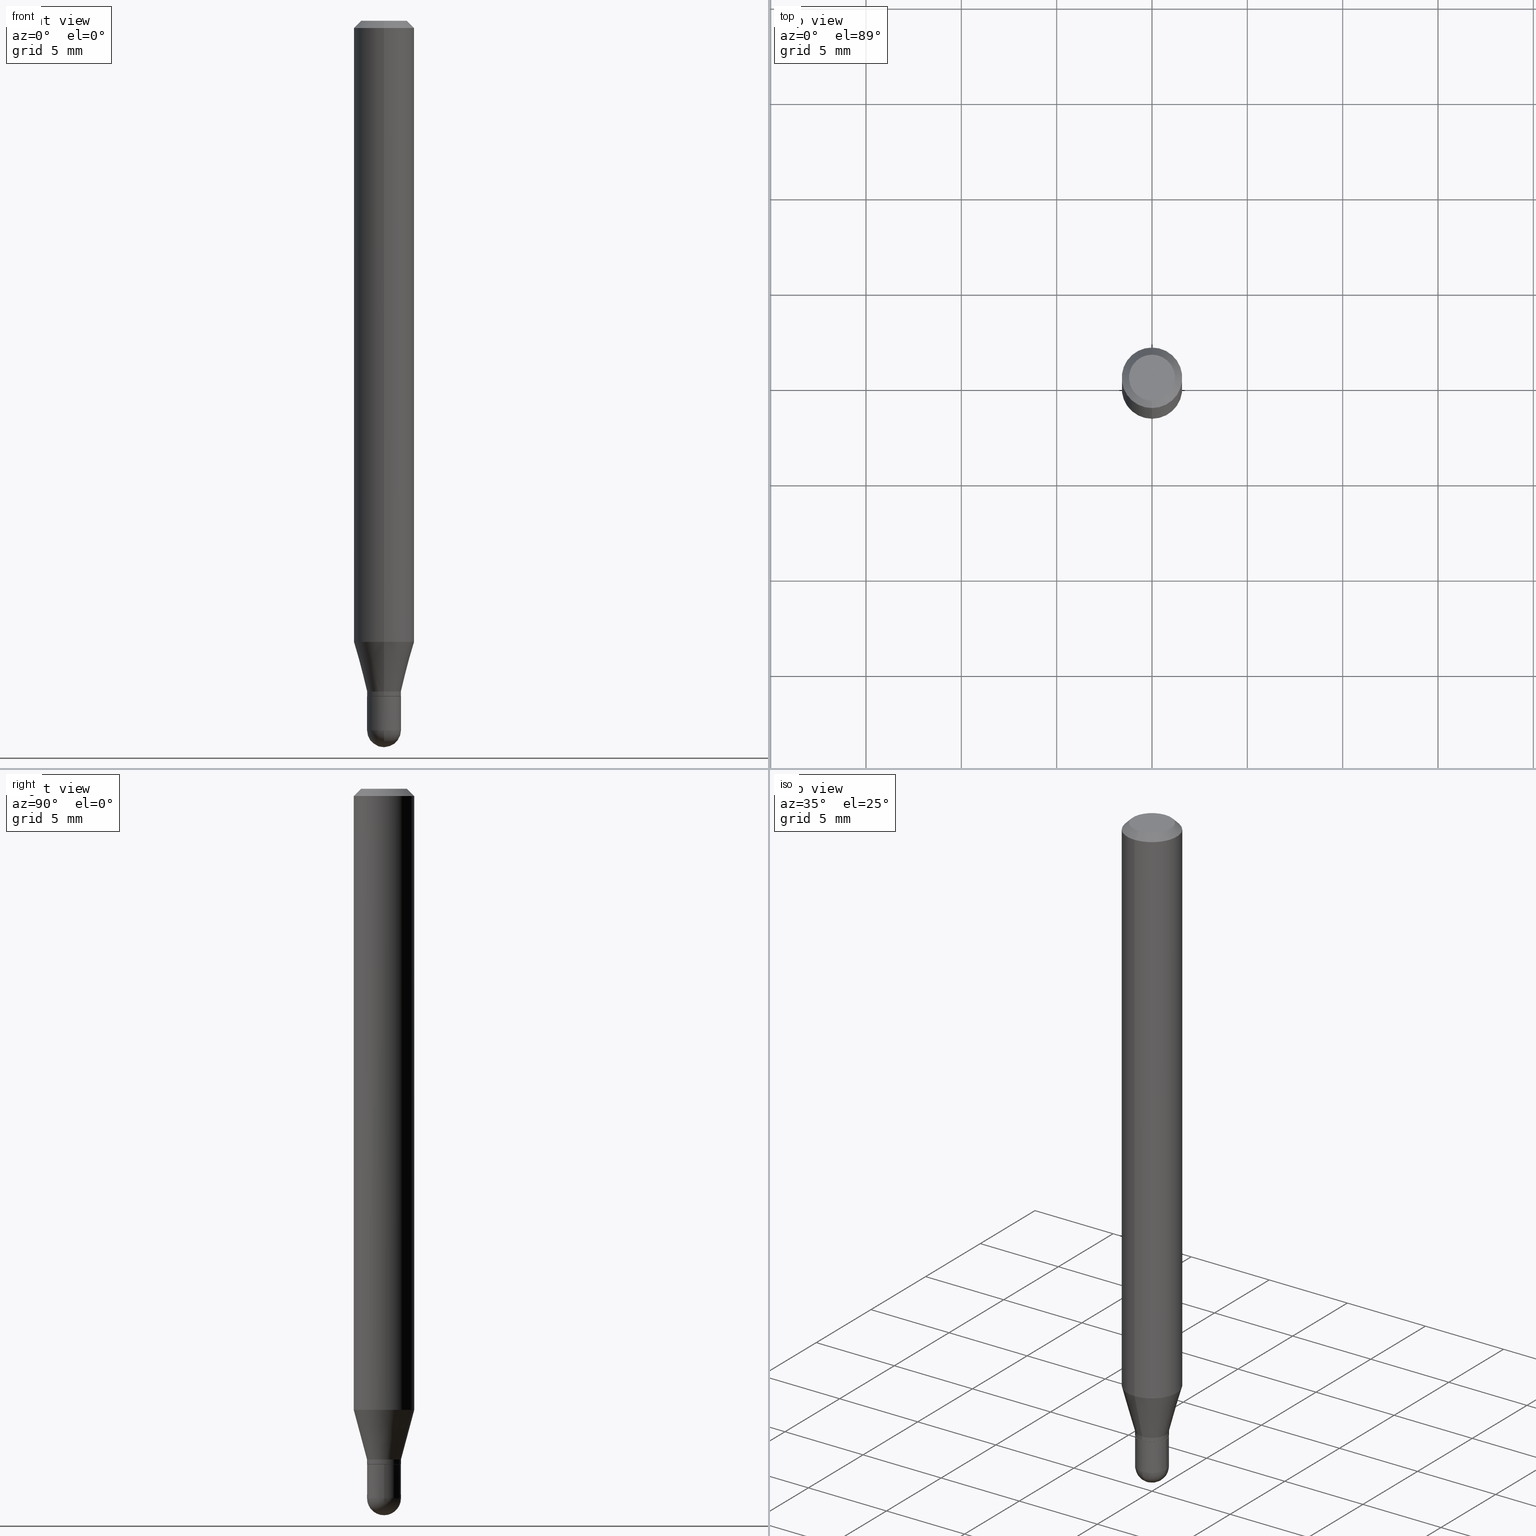
[diagram: canonical four-view strip — front | top / right | iso, engineering-drawing reading convention]
A machine part, canonical four-view strip (front | top / right | iso — engineering-drawing reading convention). The complete STEP part file that produces these views, byte-faithful:
ISO-10303-21;
HEADER;
FILE_DESCRIPTION (( 'STEP AP203' ),
    '1' );
FILE_NAME ('00798.STEP',
    '2024-03-07T18:24:52',
    ( '' ),
    ( '' ),
    'SwSTEP 2.0',
    'SolidWorks 2023',
    '' );
FILE_SCHEMA (( 'CONFIG_CONTROL_DESIGN' ));
ENDSEC;

DATA;
#1 = CARTESIAN_POINT ( 'NONE',  ( -0.03500000000000000333, 2.486899575160350887E-16, -1.721627281589217108E-30 ) ) ;
#2 = PERSON ( 'UNSPECIFIED', 'UNSPECIFIED', 'UNSPECIFIED', ('UNSPECIFIED'), ('UNSPECIFIED'), ('UNSPECIFIED') ) ;
#3 = CARTESIAN_POINT ( 'NONE',  ( 0.000000000000000000, 0.000000000000000000, 0.000000000000000000 ) ) ;
#4 = EDGE_CURVE ( 'NONE', #70, #335, #216, .T. ) ;
#5 = ORIENTED_EDGE ( 'NONE', *, *, #106, .F. ) ;
#6 = MECHANICAL_CONTEXT ( 'NONE', #450, 'mechanical' ) ;
#7 = LINE ( 'NONE', #398, #169 ) ;
#8 = CLOSED_SHELL ( 'NONE', ( #183, #82, #379, #500, #395 ) ) ;
#9 = VECTOR ( 'NONE', #223, 39.37007874015748143 ) ;
#10 = DIRECTION ( 'NONE',  ( -6.982962677686265133E-15, -1.000000000000000000, 0.000000000000000000 ) ) ;
#11 = EDGE_CURVE ( 'NONE', #335, #428, #389, .T. ) ;
#12 = AXIS2_PLACEMENT_3D ( 'NONE', #69, #235, #386 ) ;
#13 = DIRECTION ( 'NONE',  ( 1.000000000000000000, 0.000000000000000000, 0.000000000000000000 ) ) ;
#14 = CARTESIAN_POINT ( 'NONE',  ( -4.364351673553604601E-16, -0.06250000000000451028, -1.282368602791855716 ) ) ;
#15 = DATE_TIME_ROLE ( 'creation_date' ) ;
#16 = CARTESIAN_POINT ( 'NONE',  ( 3.668135140074486456E-31, -5.237319487237992439E-17, -0.01500000000000000812 ) ) ;
#17 = CARTESIAN_POINT ( 'NONE',  ( 0.000000000000000000, 0.000000000000000000, 0.000000000000000000 ) ) ;
#18 = AXIS2_PLACEMENT_3D ( 'NONE', #315, #313, #122 ) ;
#19 = CONICAL_SURFACE ( 'NONE', #301, 0.03450000000000000289, 0.7853981633974739252 ) ;
#20 = LOCAL_TIME ( 13, 24, 52.00000000000000000, #442 ) ;
#21 = COORDINATED_UNIVERSAL_TIME_OFFSET ( 5, 0, .BEHIND. ) ;
#22 = EDGE_CURVE ( 'NONE', #304, #262, #168, .T. ) ;
#23 = LINE ( 'NONE', #490, #257 ) ;
#24 = PERSON_AND_ORGANIZATION_ROLE ( 'design_supplier' ) ;
#25 = DIRECTION ( 'NONE',  ( -2.445423426716322459E-29, 3.491546324825326452E-15, 1.000000000000000000 ) ) ;
#26 = COORDINATED_UNIVERSAL_TIME_OFFSET ( 5, 0, .BEHIND. ) ;
#27 = DIRECTION ( 'NONE',  ( -2.445423426716322459E-29, 3.491546324825326452E-15, 1.000000000000000000 ) ) ;
#28 = ORIENTED_EDGE ( 'NONE', *, *, #106, .T. ) ;
#29 = ADVANCED_FACE ( 'NONE', ( #238 ), #247, .T. ) ;
#30 = PERSON_AND_ORGANIZATION_ROLE ( 'classification_officer' ) ;
#31 = PRODUCT ( '00798', '00798', '', ( #6 ) ) ;
#32 = DIRECTION ( 'NONE',  ( -6.982962677686265922E-15, -1.000000000000000000, 3.491546324825326452E-15 ) ) ;
#33 = ORIENTED_EDGE ( 'NONE', *, *, #116, .F. ) ;
#34 = ORIENTED_EDGE ( 'NONE', *, *, #460, .T. ) ;
#35 = ORIENTED_EDGE ( 'NONE', *, *, #52, .F. ) ;
#36 = AXIS2_PLACEMENT_3D ( 'NONE', #51, #204, #354 ) ;
#37 = AXIS2_PLACEMENT_3D ( 'NONE', #57, #213, #363 ) ;
#38 = AXIS2_PLACEMENT_3D ( 'NONE', #477, #245, #483 ) ;
#39 = EDGE_CURVE ( 'NONE', #191, #141, #284, .T. ) ;
#40 = UNCERTAINTY_MEASURE_WITH_UNIT (LENGTH_MEASURE( 1.000000000000000082E-05 ), #251, 'distance_accuracy_value', 'NONE');
#41 = ORIENTED_EDGE ( 'NONE', *, *, #239, .T. ) ;
#42 = CYLINDRICAL_SURFACE ( 'NONE', #54, 0.06250000000000000000 ) ;
#43 = EDGE_LOOP ( 'NONE', ( #378, #498, #105, #482 ) ) ;
#44 = LINE ( 'NONE', #311, #9 ) ;
#45 = DIRECTION ( 'NONE',  ( -2.445423426716322459E-29, 3.491546324825326452E-15, 1.000000000000000000 ) ) ;
#46 = EDGE_CURVE ( 'NONE', #452, #456, #390, .T. ) ;
#47 = DIRECTION ( 'NONE',  ( 1.000000000000000000, -6.982962677686276966E-15, 0.000000000000000000 ) ) ;
#48 = CIRCLE ( 'NONE', #278, 0.06250000000000000000 ) ;
#49 = CARTESIAN_POINT ( 'NONE',  ( 0.03500000000000000333, -2.444036937190193250E-16, 1.706661871528577808E-30 ) ) ;
#50 = DIMENSIONAL_EXPONENTS ( 1.000000000000000000, 0.000000000000000000, 0.000000000000000000, 0.000000000000000000, 0.000000000000000000, 0.000000000000000000, 0.000000000000000000 ) ;
#51 = CARTESIAN_POINT ( 'NONE',  ( 3.579618719049097467E-29, -5.119306425202223514E-15, -1.465000000000000080 ) ) ;
#52 = EDGE_CURVE ( 'NONE', #141, #492, #437, .T. ) ;
#53 = CARTESIAN_POINT ( 'NONE',  ( 3.411428984628265351E-29, -4.870616467686188228E-15, -1.395000000000000018 ) ) ;
#54 = AXIS2_PLACEMENT_3D ( 'NONE', #334, #27, #418 ) ;
#55 = DIRECTION ( 'NONE',  ( -2.445468806185136597E-29, 3.491481338843145583E-15, 1.000000000000000000 ) ) ;
#56 = CALENDAR_DATE ( 2024, 7, 3 ) ;
#57 = CARTESIAN_POINT ( 'NONE',  ( 3.386911446002107109E-29, -4.835791659883077532E-15, -1.385000000000000009 ) ) ;
#58 =( LENGTH_UNIT ( ) NAMED_UNIT ( * ) SI_UNIT ( $, .METRE. ) );
#59 = CYLINDRICAL_SURFACE ( 'NONE', #375, 0.03500000000000000333 ) ;
#60 = EDGE_CURVE ( 'NONE', #456, #309, #277, .T. ) ;
#61 = DIRECTION ( 'NONE',  ( -1.807323732225328167E-15, -0.2588190451025179084, 0.9659258262890690894 ) ) ;
#62 = AXIS2_PLACEMENT_3D ( 'NONE', #64, #436, #180 ) ;
#63 = ORGANIZATION ( 'UNSPECIFIED', 'UNSPECIFIED', '' ) ;
#64 = CARTESIAN_POINT ( 'NONE',  ( 0.000000000000000000, 0.000000000000000000, 0.000000000000000000 ) ) ;
#65 = EDGE_CURVE ( 'NONE', #191, #503, #127, .T. ) ;
#66 = DIRECTION ( 'NONE',  ( -2.445423426716322459E-29, 3.491546324825326452E-15, 1.000000000000000000 ) ) ;
#67 = ORIENTED_EDGE ( 'NONE', *, *, #136, .F. ) ;
#68 = PERSON_AND_ORGANIZATION ( #2, #63 ) ;
#69 = CARTESIAN_POINT ( 'NONE',  ( 3.582611801061224486E-29, -5.115020161405207405E-15, -1.464999999999999858 ) ) ;
#70 = VERTEX_POINT ( 'NONE', #206 ) ;
#71 = CIRCLE ( 'NONE', #447, 0.04749999999999999362 ) ;
#72 = APPROVAL_DATE_TIME ( #406, #193 ) ;
#73 =( GEOMETRIC_REPRESENTATION_CONTEXT ( 3 ) GLOBAL_UNCERTAINTY_ASSIGNED_CONTEXT ( ( #40 ) ) GLOBAL_UNIT_ASSIGNED_CONTEXT ( ( #251, #435, #355 ) ) REPRESENTATION_CONTEXT ( 'NONE', 'WORKASPACE' ) );
#74 = EDGE_LOOP ( 'NONE', ( #434, #393, #194, #179 ) ) ;
#75 = ORIENTED_EDGE ( 'NONE', *, *, #274, .F. ) ;
#76 = EDGE_CURVE ( 'NONE', #428, #309, #92, .T. ) ;
#77 = ORIENTED_EDGE ( 'NONE', *, *, #403, .T. ) ;
#78 = CARTESIAN_POINT ( 'NONE',  ( 3.840629472727447874E-16, 0.04749999999999999362, -1.747056831868805136E-16 ) ) ;
#79 = CC_DESIGN_APPROVAL ( #415, ( #188 ) ) ;
#80 = ORIENTED_EDGE ( 'NONE', *, *, #136, .T. ) ;
#81 = DIRECTION ( 'NONE',  ( 2.445423426716322459E-29, -3.491546324825326452E-15, -1.000000000000000000 ) ) ;
#82 = ADVANCED_FACE ( 'NONE', ( #242 ), #350, .T. ) ;
#83 = CARTESIAN_POINT ( 'NONE',  ( 3.386911446002107109E-29, -4.835791659883077532E-15, -1.385000000000000009 ) ) ;
#84 = CARTESIAN_POINT ( 'NONE',  ( 3.410142968555912211E-29, -4.868961349968917985E-15, -1.394500000000000073 ) ) ;
#85 = ORIENTED_EDGE ( 'NONE', *, *, #333, .F. ) ;
#86 = CYLINDRICAL_SURFACE ( 'NONE', #341, 0.06250000000000000000 ) ;
#87 = AXIS2_PLACEMENT_3D ( 'NONE', #138, #258, #440 ) ;
#88 = DIRECTION ( 'NONE',  ( -2.445468806185136877E-29, 3.491481338843145188E-15, 1.000000000000000000 ) ) ;
#89 = CARTESIAN_POINT ( 'NONE',  ( 2.486899575160344971E-16, 0.03499999999999992700, -1.222041213688861615E-16 ) ) ;
#90 = LENGTH_MEASURE_WITH_UNIT ( LENGTH_MEASURE( 0.02539999999999999897 ), #58 );
#91 = CC_DESIGN_DATE_AND_TIME_ASSIGNMENT ( #112, #145, ( #241 ) ) ;
#92 = LINE ( 'NONE', #1, #473 ) ;
#93 = PERSON_AND_ORGANIZATION ( #2, #63 ) ;
#94 = AXIS2_PLACEMENT_3D ( 'NONE', #124, #275, #426 ) ;
#95 = DIRECTION ( 'NONE',  ( -2.445423426716322459E-29, 3.491546324825326452E-15, 1.000000000000000000 ) ) ;
#96 = CARTESIAN_POINT ( 'NONE',  ( -3.773273898774340269E-16, -0.04749999999999999362, 1.569912176715254934E-16 ) ) ;
#97 = DIRECTION ( 'NONE',  ( -6.982962677686265922E-15, -1.000000000000000000, 3.483106191921935554E-15 ) ) ;
#98 = EDGE_CURVE ( 'NONE', #141, #485, #317, .T. ) ;
#99 = APPROVAL_ROLE ( '' ) ;
#100 = CARTESIAN_POINT ( 'NONE',  ( -2.486899575159992942E-16, -0.03500000000000512423, -1.464999999999999858 ) ) ;
#101 = PERSON_AND_ORGANIZATION ( #2, #63 ) ;
#102 = DIRECTION ( 'NONE',  ( -6.982962677686266711E-15, -1.000000000000000000, 3.491546324825326846E-15 ) ) ;
#103 = VECTOR ( 'NONE', #319, 39.37007874015748854 ) ;
#104 = VECTOR ( 'NONE', #110, 39.37007874015748143 ) ;
#105 = ORIENTED_EDGE ( 'NONE', *, *, #218, .F. ) ;
#106 = EDGE_CURVE ( 'NONE', #132, #503, #7, .T. ) ;
#107 = CARTESIAN_POINT ( 'NONE',  ( 3.316907271900976096E-16, 0.04749999999999999362, -1.702770668080417462E-16 ) ) ;
#108 = EDGE_LOOP ( 'NONE', ( #291, #75, #265, #411 ) ) ;
#109 = APPLICATION_CONTEXT ( 'configuration controlled 3d designs of mechanical parts and assemblies' ) ;
#110 = DIRECTION ( 'NONE',  ( -2.445423426716322459E-29, 3.491546324825326452E-15, 1.000000000000000000 ) ) ;
#111 = ORIENTED_EDGE ( 'NONE', *, *, #312, .T. ) ;
#112 = DATE_AND_TIME ( #338, #20 ) ;
#113 = DIRECTION ( 'NONE',  ( -2.445468806185136597E-29, 3.491481338843145583E-15, 1.000000000000000000 ) ) ;
#114 = ORIENTED_EDGE ( 'NONE', *, *, #60, .T. ) ;
#115 = ORIENTED_EDGE ( 'NONE', *, *, #460, .F. ) ;
#116 = EDGE_CURVE ( 'NONE', #132, #377, #230, .T. ) ;
#117 = EDGE_LOOP ( 'NONE', ( #33, #306 ) ) ;
#118 = EDGE_LOOP ( 'NONE', ( #385, #507, #129, #149 ) ) ;
#119 = CIRCLE ( 'NONE', #294, 0.06250000000000000000 ) ;
#120 = CARTESIAN_POINT ( 'NONE',  ( 3.668135140074486456E-31, -5.237319487237992439E-17, -0.01500000000000000812 ) ) ;
#121 = CC_DESIGN_APPROVAL ( #479, ( #359 ) ) ;
#122 = DIRECTION ( 'NONE',  ( 1.000000000000000000, -6.982962677686276966E-15, 0.000000000000000000 ) ) ;
#123 = DIRECTION ( 'NONE',  ( -6.982962677686265133E-15, -1.000000000000000000, 0.000000000000000000 ) ) ;
#124 = CARTESIAN_POINT ( 'NONE',  ( 3.411365680269269400E-29, -4.870707123131330848E-15, -1.395000000000000018 ) ) ;
#125 = DIRECTION ( 'NONE',  ( -2.445423426716322179E-29, 3.491546324825326452E-15, 1.000000000000000000 ) ) ;
#126 = DIRECTION ( 'NONE',  ( -6.982962677686265133E-15, -1.000000000000000000, 0.000000000000000000 ) ) ;
#127 = CIRCLE ( 'NONE', #349, 0.03499999999999992700 ) ;
#128 = SPHERICAL_SURFACE ( 'NONE', #400, 0.03500000000000001721 ) ;
#129 = ORIENTED_EDGE ( 'NONE', *, *, #211, .T. ) ;
#130 = CC_DESIGN_PERSON_AND_ORGANIZATION_ASSIGNMENT ( #101, #24, ( #359 ) ) ;
#131 = CARTESIAN_POINT ( 'NONE',  ( 4.440892098500936776E-16, 0.06249999999999548972, -1.282368602791856160 ) ) ;
#132 = VERTEX_POINT ( 'NONE', #176 ) ;
#133 = APPROVAL_DATE_TIME ( #480, #415 ) ;
#134 = DIRECTION ( 'NONE',  ( -6.982962677686265922E-15, -1.000000000000000000, 3.483106191921935554E-15 ) ) ;
#135 = CARTESIAN_POINT ( 'NONE',  ( -4.364351673553916201E-16, -0.06250000000000000000, 2.182216453015828786E-16 ) ) ;
#136 = EDGE_CURVE ( 'NONE', #485, #262, #23, .T. ) ;
#137 = CIRCLE ( 'NONE', #358, 0.03500000000000000333 ) ;
#138 = CARTESIAN_POINT ( 'NONE',  ( 3.582611801061224486E-29, -5.115020161405207405E-15, -1.464999999999999858 ) ) ;
#139 = ORIENTED_EDGE ( 'NONE', *, *, #419, .F. ) ;
#140 = DIRECTION ( 'NONE',  ( -6.982962677686265922E-15, -1.000000000000000000, 4.370956789862821150E-15 ) ) ;
#141 = VERTEX_POINT ( 'NONE', #481 ) ;
#142 = DIRECTION ( 'NONE',  ( -2.445423426716322459E-29, 3.491546324825326452E-15, 1.000000000000000000 ) ) ;
#143 = EDGE_LOOP ( 'NONE', ( #366, #297, #34, #380, #196 ) ) ;
#144 = EDGE_CURVE ( 'NONE', #505, #304, #147, .T. ) ;
#145 = DATE_TIME_ROLE ( 'classification_date' ) ;
#146 = CARTESIAN_POINT ( 'NONE',  ( 3.579618719049097467E-29, -5.119306425202223514E-15, -1.465000000000000080 ) ) ;
#147 = CIRCLE ( 'NONE', #420, 0.04749999999999999362 ) ;
#148 = DIRECTION ( 'NONE',  ( -6.982962677686265922E-15, -1.000000000000000000, 4.370956789862821150E-15 ) ) ;
#149 = ORIENTED_EDGE ( 'NONE', *, *, #22, .F. ) ;
#150 = DIRECTION ( 'NONE',  ( 1.000000000000000000, -6.982962677686276966E-15, 0.000000000000000000 ) ) ;
#151 = EDGE_LOOP ( 'NONE', ( #67, #228, #475, #156 ) ) ;
#152 = CC_DESIGN_PERSON_AND_ORGANIZATION_ASSIGNMENT ( #254, #371, ( #359 ) ) ;
#153 = ORIENTED_EDGE ( 'NONE', *, *, #429, .F. ) ;
#154 = CONICAL_SURFACE ( 'NONE', #37, 0.03499999999999992700, 0.2617993877991499629 ) ;
#155 = CIRCLE ( 'NONE', #381, 0.03450000000000000289 ) ;
#156 = ORIENTED_EDGE ( 'NONE', *, *, #167, .F. ) ;
#157 = ORIENTED_EDGE ( 'NONE', *, *, #65, .T. ) ;
#158 = EDGE_CURVE ( 'NONE', #452, #335, #325, .T. ) ;
#159 = DIRECTION ( 'NONE',  ( -4.851104656540964275E-15, -0.7071067811865500152, -0.7071067811865450192 ) ) ;
#160 = ORIENTED_EDGE ( 'NONE', *, *, #4, .T. ) ;
#161 = VECTOR ( 'NONE', #353, 39.37007874015748143 ) ;
#162 = AXIS2_PLACEMENT_3D ( 'NONE', #488, #142, #494 ) ;
#163 = CYLINDRICAL_SURFACE ( 'NONE', #232, 0.03500000000000000333 ) ;
#164 = DIRECTION ( 'NONE',  ( -2.445468806185136597E-29, 3.491481338843145583E-15, 1.000000000000000000 ) ) ;
#165 = CARTESIAN_POINT ( 'NONE',  ( -2.444036937190187827E-16, -0.03499999999999992700, 1.222041213688861615E-16 ) ) ;
#166 = CARTESIAN_POINT ( 'NONE',  ( 3.411365680269269400E-29, -4.870707123131330848E-15, -1.395000000000000018 ) ) ;
#167 = EDGE_CURVE ( 'NONE', #262, #299, #208, .T. ) ;
#168 = LINE ( 'NONE', #432, #190 ) ;
#169 = VECTOR ( 'NONE', #468, 39.37007874015748143 ) ;
#170 = CIRCLE ( 'NONE', #368, 0.06250000000000000000 ) ;
#171 = CARTESIAN_POINT ( 'NONE',  ( 3.410142968555912211E-29, -4.868961349968917985E-15, -1.394500000000000073 ) ) ;
#172 = CARTESIAN_POINT ( 'NONE',  ( -2.444036937189855026E-16, -0.03500000000000491607, -1.394500000000000073 ) ) ;
#173 = DIRECTION ( 'NONE',  ( 6.982962677686265922E-15, 1.000000000000000000, -3.483106191921935554E-15 ) ) ;
#174 = EDGE_CURVE ( 'NONE', #187, #485, #48, .T. ) ;
#175 = LINE ( 'NONE', #135, #369 ) ;
#176 = CARTESIAN_POINT ( 'NONE',  ( -2.409122123801420517E-16, -0.03450000000000487399, -1.395000000000000018 ) ) ;
#177 = AXIS2_PLACEMENT_3D ( 'NONE', #17, #408, #321 ) ;
#178 = DIRECTION ( 'NONE',  ( -2.445423426716322459E-29, 3.491546324825326452E-15, 1.000000000000000000 ) ) ;
#179 = ORIENTED_EDGE ( 'NONE', *, *, #246, .F. ) ;
#180 = DIRECTION ( 'NONE',  ( -6.982962677686265133E-15, -1.000000000000000000, 3.491546324825326058E-15 ) ) ;
#181 = PERSON_AND_ORGANIZATION ( #2, #63 ) ;
#182 = DIRECTION ( 'NONE',  ( -2.445423426716322459E-29, 3.491546324825326452E-15, 1.000000000000000000 ) ) ;
#183 = ADVANCED_FACE ( 'NONE', ( #289 ), #59, .T. ) ;
#184 = PLANE ( 'NONE',  #367 ) ;
#185 = EDGE_LOOP ( 'NONE', ( #266, #343, #221, #153 ) ) ;
#186 = LINE ( 'NONE', #296, #495 ) ;
#187 = VERTEX_POINT ( 'NONE', #14 ) ;
#188 = PRODUCT_DEFINITION ( 'UNKNOWN', '', #359, #303 ) ;
#189 = EDGE_LOOP ( 'NONE', ( #269, #41, #302, #264 ) ) ;
#190 = VECTOR ( 'NONE', #471, 39.37007874015748143 ) ;
#191 = VERTEX_POINT ( 'NONE', #285 ) ;
#192 = LOCAL_TIME ( 13, 24, 52.00000000000000000, #26 ) ;
#193 = APPROVAL ( #293, 'UNSPECIFIED' ) ;
#194 = ORIENTED_EDGE ( 'NONE', *, *, #174, .F. ) ;
#195 = FACE_OUTER_BOUND ( 'NONE', #478, .T. ) ;
#196 = ORIENTED_EDGE ( 'NONE', *, *, #312, .F. ) ;
#197 = FACE_OUTER_BOUND ( 'NONE', #74, .T. ) ;
#198 = DIRECTION ( 'NONE',  ( -2.445423426716322459E-29, 3.491546324825326452E-15, 1.000000000000000000 ) ) ;
#199 = AXIS2_PLACEMENT_3D ( 'NONE', #327, #323, #173 ) ;
#200 = CARTESIAN_POINT ( 'NONE',  ( 3.582611801061224486E-29, -5.115020161405207405E-15, -1.464999999999999858 ) ) ;
#201 = ORIENTED_EDGE ( 'NONE', *, *, #211, .F. ) ;
#202 = DIRECTION ( 'NONE',  ( 6.982962677686265922E-15, 1.000000000000000000, 0.000000000000000000 ) ) ;
#203 = ADVANCED_FACE ( 'NONE', ( #210 ), #391, .T. ) ;
#204 = DIRECTION ( 'NONE',  ( -1.000000000000000000, 6.982962677686265922E-15, -4.883557194083112340E-29 ) ) ;
#205 = APPROVAL_ROLE ( '' ) ;
#206 = CARTESIAN_POINT ( 'NONE',  ( 3.666706668271640825E-29, -5.239365140163226231E-15, -1.500000000000000222 ) ) ;
#207 = CALENDAR_DATE ( 2024, 7, 3 ) ;
#208 = CIRCLE ( 'NONE', #263, 0.06250000000000000000 ) ;
#209 = LOCAL_TIME ( 13, 24, 52.00000000000000000, #21 ) ;
#210 = FACE_OUTER_BOUND ( 'NONE', #118, .T. ) ;
#211 = EDGE_CURVE ( 'NONE', #299, #262, #170, .T. ) ;
#212 = DATE_AND_TIME ( #56, #407 ) ;
#213 = DIRECTION ( 'NONE',  ( -2.445423426716322459E-29, 3.491546324825326452E-15, 1.000000000000000000 ) ) ;
#214 = CARTESIAN_POINT ( 'NONE',  ( 0.000000000000000000, 0.000000000000000000, 0.000000000000000000 ) ) ;
#215 = PERSON_AND_ORGANIZATION ( #2, #63 ) ;
#216 = CIRCLE ( 'NONE', #463, 0.03500000000000001721 ) ;
#217 = CYLINDRICAL_SURFACE ( 'NONE', #62, 0.03499999999999992700 ) ;
#218 = EDGE_CURVE ( 'NONE', #492, #141, #427, .T. ) ;
#219 = PLANE ( 'NONE',  #438 ) ;
#220 = CARTESIAN_POINT ( 'NONE',  ( -4.364351673553912750E-16, -0.06250000000000005551, -0.01499999999999979128 ) ) ;
#221 = ORIENTED_EDGE ( 'NONE', *, *, #246, .T. ) ;
#222 = SECURITY_CLASSIFICATION_LEVEL ( 'unclassified' ) ;
#223 = DIRECTION ( 'NONE',  ( 5.024295867788190974E-15, 0.7071067811865681119, 0.7071067811865270336 ) ) ;
#224 = AXIS2_PLACEMENT_3D ( 'NONE', #53, #164, #244 ) ;
#225 = CONICAL_SURFACE ( 'NONE', #287, 0.06250000000000000000, 0.7853981633974483900 ) ;
#226 = ORIENTED_EDGE ( 'NONE', *, *, #158, .F. ) ;
#227 = ADVANCED_FACE ( 'NONE', ( #443 ), #365, .T. ) ;
#228 = ORIENTED_EDGE ( 'NONE', *, *, #429, .T. ) ;
#229 = EDGE_LOOP ( 'NONE', ( #458, #489, #85, #5 ) ) ;
#230 = CIRCLE ( 'NONE', #94, 0.03450000000000000289 ) ;
#231 = ORIENTED_EDGE ( 'NONE', *, *, #144, .T. ) ;
#232 = AXIS2_PLACEMENT_3D ( 'NONE', #3, #113, #462 ) ;
#233 = FACE_OUTER_BOUND ( 'NONE', #229, .T. ) ;
#234 = VERTEX_POINT ( 'NONE', #100 ) ;
#235 = DIRECTION ( 'NONE',  ( -2.445468806185136597E-29, 3.491481338843145583E-15, 1.000000000000000000 ) ) ;
#236 = CARTESIAN_POINT ( 'NONE',  ( 3.579618719049097467E-29, -5.119306425202223514E-15, -1.465000000000000080 ) ) ;
#237 = CARTESIAN_POINT ( 'NONE',  ( 2.444036937190551689E-16, 0.03499999999999489630, -1.464999999999999858 ) ) ;
#238 = FACE_OUTER_BOUND ( 'NONE', #276, .T. ) ;
#239 = EDGE_CURVE ( 'NONE', #70, #234, #310, .T. ) ;
#240 = CARTESIAN_POINT ( 'NONE',  ( 0.000000000000000000, 0.000000000000000000, 0.000000000000000000 ) ) ;
#241 = SECURITY_CLASSIFICATION ( '', '', #222 ) ;
#242 = FACE_OUTER_BOUND ( 'NONE', #189, .T. ) ;
#243 = DIRECTION ( 'NONE',  ( 0.000000000000000000, 0.000000000000000000, 1.000000000000000000 ) ) ;
#244 = DIRECTION ( 'NONE',  ( 1.000000000000000000, -6.982962677686276966E-15, 0.000000000000000000 ) ) ;
#245 = DIRECTION ( 'NONE',  ( -2.445423426716322459E-29, 3.491546324825326452E-15, 1.000000000000000000 ) ) ;
#246 = EDGE_CURVE ( 'NONE', #492, #187, #370, .T. ) ;
#247 = CONICAL_SURFACE ( 'NONE', #308, 0.03450000000000000289, 0.7853981633974739252 ) ;
#248 = PERSON_AND_ORGANIZATION_ROLE ( 'creator' ) ;
#249 = AXIS2_PLACEMENT_3D ( 'NONE', #84, #501, #123 ) ;
#250 = CARTESIAN_POINT ( 'NONE',  ( 2.165968448150382368E-46, -3.092543848319143153E-32, -8.857232757677519371E-18 ) ) ;
#251 =( CONVERSION_BASED_UNIT ( 'INCH', #90 ) LENGTH_UNIT ( ) NAMED_UNIT ( #50 ) );
#252 = DIRECTION ( 'NONE',  ( 1.000000000000000000, -6.982962677686265922E-15, 4.876176775795936353E-29 ) ) ;
#253 = ORIENTED_EDGE ( 'NONE', *, *, #39, .F. ) ;
#254 = PERSON_AND_ORGANIZATION ( #2, #63 ) ;
#255 = DIRECTION ( 'NONE',  ( -1.000000000000000000, 7.105427357601001070E-15, -4.926315508542082329E-29 ) ) ;
#256 = ADVANCED_FACE ( 'NONE', ( #449 ), #217, .T. ) ;
#257 = VECTOR ( 'NONE', #178, 39.37007874015748143 ) ;
#258 = DIRECTION ( 'NONE',  ( -2.445468806185136597E-29, 3.491481338843145583E-15, 1.000000000000000000 ) ) ;
#259 = CARTESIAN_POINT ( 'NONE',  ( 4.440892098500940720E-16, 0.06249999999999993755, -0.01500000000000022669 ) ) ;
#260 = ADVANCED_FACE ( 'NONE', ( #373 ), #219, .F. ) ;
#261 = CARTESIAN_POINT ( 'NONE',  ( 3.411365680269269400E-29, -4.870707123131330848E-15, -1.395000000000000018 ) ) ;
#262 = VERTEX_POINT ( 'NONE', #259 ) ;
#263 = AXIS2_PLACEMENT_3D ( 'NONE', #361, #95, #134 ) ;
#264 = ORIENTED_EDGE ( 'NONE', *, *, #11, .F. ) ;
#265 = ORIENTED_EDGE ( 'NONE', *, *, #22, .T. ) ;
#266 = ORIENTED_EDGE ( 'NONE', *, *, #98, .F. ) ;
#267 = CC_DESIGN_PERSON_AND_ORGANIZATION_ASSIGNMENT ( #68, #30, ( #241 ) ) ;
#268 = FACE_OUTER_BOUND ( 'NONE', #108, .T. ) ;
#269 = ORIENTED_EDGE ( 'NONE', *, *, #4, .F. ) ;
#270 = CC_DESIGN_APPROVAL ( #193, ( #241 ) ) ;
#271 = DIRECTION ( 'NONE',  ( -2.445468806185136597E-29, 3.491481338843145583E-15, 1.000000000000000000 ) ) ;
#272 = DIRECTION ( 'NONE',  ( 1.000000000000000000, -6.982962677686265922E-15, 4.883557194083112340E-29 ) ) ;
#273 = DIRECTION ( 'NONE',  ( -6.982962677686265133E-15, -1.000000000000000000, 0.000000000000000000 ) ) ;
#274 = EDGE_CURVE ( 'NONE', #304, #505, #71, .T. ) ;
#275 = DIRECTION ( 'NONE',  ( -2.445423426716322459E-29, 3.491546324825326452E-15, 1.000000000000000000 ) ) ;
#276 = EDGE_LOOP ( 'NONE', ( #139, #344, #28, #416 ) ) ;
#277 = CIRCLE ( 'NONE', #224, 0.03500000000000000333 ) ;
#278 = AXIS2_PLACEMENT_3D ( 'NONE', #405, #182, #140 ) ;
#279 = PERSON_AND_ORGANIZATION_ROLE ( 'design_owner' ) ;
#280 = MANIFOLD_SOLID_BREP ( 'Body-Move/Copy2[1]', #8 ) ;
#281 = EDGE_LOOP ( 'NONE', ( #414, #396, #422, #459, #461 ) ) ;
#282 = CC_DESIGN_PERSON_AND_ORGANIZATION_ASSIGNMENT ( #316, #279, ( #31 ) ) ;
#283 = DIRECTION ( 'NONE',  ( -6.982962677686265922E-15, -1.000000000000000000, 3.491546324825326058E-15 ) ) ;
#284 = LINE ( 'NONE', #89, #300 ) ;
#285 = CARTESIAN_POINT ( 'NONE',  ( 2.486899575160677278E-16, 0.03499999999999493794, -1.394500000000000073 ) ) ;
#286 = FACE_OUTER_BOUND ( 'NONE', #328, .T. ) ;
#287 = AXIS2_PLACEMENT_3D ( 'NONE', #120, #81, #410 ) ;
#288 = DIRECTION ( 'NONE',  ( -2.445423426716322459E-29, 3.491546324825326452E-15, 1.000000000000000000 ) ) ;
#289 = FACE_OUTER_BOUND ( 'NONE', #281, .T. ) ;
#290 = ADVANCED_FACE ( 'NONE', ( #402 ), #154, .T. ) ;
#291 = ORIENTED_EDGE ( 'NONE', *, *, #446, .F. ) ;
#292 = DIRECTION ( 'NONE',  ( 6.982962677686265922E-15, 1.000000000000000000, -3.491546324825326452E-15 ) ) ;
#293 = APPROVAL_STATUS ( 'not_yet_approved' ) ;
#294 = AXIS2_PLACEMENT_3D ( 'NONE', #409, #66, #148 ) ;
#295 = CARTESIAN_POINT ( 'NONE',  ( -2.444036937189849110E-16, -0.03500000000000476341, -1.385000000000000009 ) ) ;
#296 = CARTESIAN_POINT ( 'NONE',  ( -4.287811248607203282E-16, -0.06250000000000005551, -0.01499999999999979128 ) ) ;
#297 = ORIENTED_EDGE ( 'NONE', *, *, #356, .T. ) ;
#298 = CARTESIAN_POINT ( 'NONE',  ( 3.411365680269269400E-29, -4.870707123131330848E-15, -1.395000000000000018 ) ) ;
#299 = VERTEX_POINT ( 'NONE', #220 ) ;
#300 = VECTOR ( 'NONE', #424, 39.37007874015748143 ) ;
#301 = AXIS2_PLACEMENT_3D ( 'NONE', #383, #497, #273 ) ;
#302 = ORIENTED_EDGE ( 'NONE', *, *, #356, .F. ) ;
#303 = DESIGN_CONTEXT ( 'detailed design', #109, 'design' ) ;
#304 = VERTEX_POINT ( 'NONE', #78 ) ;
#305 = CC_DESIGN_DATE_AND_TIME_ASSIGNMENT ( #212, #15, ( #188 ) ) ;
#306 = ORIENTED_EDGE ( 'NONE', *, *, #372, .F. ) ;
#307 = FACE_OUTER_BOUND ( 'NONE', #117, .T. ) ;
#308 = AXIS2_PLACEMENT_3D ( 'NONE', #166, #387, #346 ) ;
#309 = VERTEX_POINT ( 'NONE', #348 ) ;
#310 = CIRCLE ( 'NONE', #457, 0.03500000000000001721 ) ;
#311 = CARTESIAN_POINT ( 'NONE',  ( 2.451372438372686536E-16, 0.03449999999999513178, -1.395000000000000018 ) ) ;
#312 = EDGE_CURVE ( 'NONE', #309, #456, #464, .T. ) ;
#313 = DIRECTION ( 'NONE',  ( -2.445468806185136597E-29, 3.491481338843145583E-15, 1.000000000000000000 ) ) ;
#314 = FACE_OUTER_BOUND ( 'NONE', #151, .T. ) ;
#315 = CARTESIAN_POINT ( 'NONE',  ( 3.582611801061224486E-29, -5.115020161405207405E-15, -1.464999999999999858 ) ) ;
#316 = PERSON_AND_ORGANIZATION ( #2, #63 ) ;
#317 = LINE ( 'NONE', #357, #103 ) ;
#318 = LOCAL_TIME ( 13, 24, 52.00000000000000000, #433 ) ;
#319 = DIRECTION ( 'NONE',  ( 1.839019923739597949E-15, 0.2588190451025246253, 0.9659258262890670910 ) ) ;
#320 = PERSON_AND_ORGANIZATION ( #2, #63 ) ;
#321 = DIRECTION ( 'NONE',  ( -6.982962677686265133E-15, -1.000000000000000000, 3.491546324825326058E-15 ) ) ;
#322 = CARTESIAN_POINT ( 'NONE',  ( -2.444036937189849110E-16, -0.03500000000000476341, -1.385000000000000009 ) ) ;
#323 = DIRECTION ( 'NONE',  ( 2.445423426716322459E-29, -3.491546324825326452E-15, -1.000000000000000000 ) ) ;
#324 = FACE_OUTER_BOUND ( 'NONE', #502, .T. ) ;
#325 = CIRCLE ( 'NONE', #87, 0.03500000000000000333 ) ;
#326 = CC_DESIGN_PERSON_AND_ORGANIZATION_ASSIGNMENT ( #93, #248, ( #188 ) ) ;
#327 = CARTESIAN_POINT ( 'NONE',  ( 3.668135140074486456E-31, -5.237319487237992439E-17, -0.01500000000000000812 ) ) ;
#328 = EDGE_LOOP ( 'NONE', ( #444, #160, #226, #115 ) ) ;
#329 = CALENDAR_DATE ( 2024, 7, 3 ) ;
#330 = DIRECTION ( 'NONE',  ( -7.105427357601001859E-15, -1.000000000000000000, 0.000000000000000000 ) ) ;
#331 = APPROVAL_STATUS ( 'not_yet_approved' ) ;
#332 = DIRECTION ( 'NONE',  ( -6.982962677686266711E-15, -1.000000000000000000, 3.491546324825326846E-15 ) ) ;
#333 = EDGE_CURVE ( 'NONE', #503, #191, #413, .T. ) ;
#334 = CARTESIAN_POINT ( 'NONE',  ( 0.000000000000000000, 0.000000000000000000, 0.000000000000000000 ) ) ;
#335 = VERTEX_POINT ( 'NONE', #237 ) ;
#336 = CARTESIAN_POINT ( 'NONE',  ( 0.03500000000000000333, -5.115020161405208194E-15, -1.395000000000000018 ) ) ;
#337 = EDGE_LOOP ( 'NONE', ( #510, #231 ) ) ;
#338 = CALENDAR_DATE ( 2024, 7, 3 ) ;
#339 = ORIENTED_EDGE ( 'NONE', *, *, #174, .T. ) ;
#340 = ADVANCED_FACE ( 'NONE', ( #233 ), #19, .T. ) ;
#341 = AXIS2_PLACEMENT_3D ( 'NONE', #240, #360, #283 ) ;
#342 = PRODUCT_DEFINITION_SHAPE ( 'NONE', 'NONE',  #188 ) ;
#343 = ORIENTED_EDGE ( 'NONE', *, *, #52, .T. ) ;
#344 = ORIENTED_EDGE ( 'NONE', *, *, #372, .T. ) ;
#345 = DIRECTION ( 'NONE',  ( 2.438088387897960049E-29, -3.491481338843145188E-15, -1.000000000000000000 ) ) ;
#346 = DIRECTION ( 'NONE',  ( -6.982962677686265133E-15, -1.000000000000000000, 0.000000000000000000 ) ) ;
#347 = ADVANCED_FACE ( 'NONE', ( #314 ), #42, .T. ) ;
#348 = CARTESIAN_POINT ( 'NONE',  ( -0.03500000000000000333, -4.744128357029662925E-15, -1.395000000000000018 ) ) ;
#349 = AXIS2_PLACEMENT_3D ( 'NONE', #171, #198, #126 ) ;
#350 = SPHERICAL_SURFACE ( 'NONE', #36, 0.03500000000000001721 ) ;
#351 = AXIS2_PLACEMENT_3D ( 'NONE', #423, #376, #150 ) ;
#352 = DIRECTION ( 'NONE',  ( -2.445423426716322459E-29, 3.491546324825326452E-15, 1.000000000000000000 ) ) ;
#353 = DIRECTION ( 'NONE',  ( -2.445468806185136877E-29, 3.491481338843145188E-15, 1.000000000000000000 ) ) ;
#354 = DIRECTION ( 'NONE',  ( 6.982962677686265922E-15, 1.000000000000000000, 0.000000000000000000 ) ) ;
#355 =( NAMED_UNIT ( * ) SI_UNIT ( $, .STERADIAN. ) SOLID_ANGLE_UNIT ( ) );
#356 = EDGE_CURVE ( 'NONE', #428, #234, #137, .T. ) ;
#357 = CARTESIAN_POINT ( 'NONE',  ( 2.486899575160683688E-16, 0.03499999999999509059, -1.385000000000000009 ) ) ;
#358 = AXIS2_PLACEMENT_3D ( 'NONE', #200, #271, #47 ) ;
#359 = PRODUCT_DEFINITION_FORMATION_WITH_SPECIFIED_SOURCE ( 'ANY', '', #31, .NOT_KNOWN. ) ;
#360 = DIRECTION ( 'NONE',  ( -2.445423426716322459E-29, 3.491546324825326452E-15, 1.000000000000000000 ) ) ;
#361 = CARTESIAN_POINT ( 'NONE',  ( 3.668135140074486456E-31, -5.237319487237992439E-17, -0.01500000000000000812 ) ) ;
#362 = CARTESIAN_POINT ( 'NONE',  ( 0.000000000000000000, 0.000000000000000000, 0.000000000000000000 ) ) ;
#363 = DIRECTION ( 'NONE',  ( -6.982962677686265133E-15, -1.000000000000000000, 0.000000000000000000 ) ) ;
#364 = ADVANCED_FACE ( 'NONE', ( #307 ), #511, .F. ) ;
#365 = CYLINDRICAL_SURFACE ( 'NONE', #177, 0.03499999999999992700 ) ;
#366 = ORIENTED_EDGE ( 'NONE', *, *, #76, .F. ) ;
#367 = AXIS2_PLACEMENT_3D ( 'NONE', #455, #345, #467 ) ;
#368 = AXIS2_PLACEMENT_3D ( 'NONE', #16, #25, #97 ) ;
#369 = VECTOR ( 'NONE', #439, 39.37007874015748143 ) ;
#370 = LINE ( 'NONE', #295, #486 ) ;
#371 = PERSON_AND_ORGANIZATION_ROLE ( 'creator' ) ;
#372 = EDGE_CURVE ( 'NONE', #377, #132, #155, .T. ) ;
#373 = FACE_OUTER_BOUND ( 'NONE', #337, .T. ) ;
#374 = LINE ( 'NONE', #165, #104 ) ;
#375 = AXIS2_PLACEMENT_3D ( 'NONE', #214, #55, #252 ) ;
#376 = DIRECTION ( 'NONE',  ( -2.445468806185136597E-29, 3.491481338843145583E-15, 1.000000000000000000 ) ) ;
#377 = VERTEX_POINT ( 'NONE', #425 ) ;
#378 = ORIENTED_EDGE ( 'NONE', *, *, #333, .T. ) ;
#379 = ADVANCED_FACE ( 'NONE', ( #195 ), #184, .F. ) ;
#380 = ORIENTED_EDGE ( 'NONE', *, *, #46, .T. ) ;
#381 = AXIS2_PLACEMENT_3D ( 'NONE', #298, #352, #388 ) ;
#382 = ORIENTED_EDGE ( 'NONE', *, *, #491, .F. ) ;
#383 = CARTESIAN_POINT ( 'NONE',  ( 3.411365680269269400E-29, -4.870707123131330848E-15, -1.395000000000000018 ) ) ;
#384 = PRODUCT_RELATED_PRODUCT_CATEGORY ( 'detail', '', ( #31 ) ) ;
#385 = ORIENTED_EDGE ( 'NONE', *, *, #144, .F. ) ;
#386 = DIRECTION ( 'NONE',  ( 1.000000000000000000, -6.982962677686276966E-15, 0.000000000000000000 ) ) ;
#387 = DIRECTION ( 'NONE',  ( -2.445423426716322459E-29, 3.491546324825326452E-15, 1.000000000000000000 ) ) ;
#388 = DIRECTION ( 'NONE',  ( -6.982962677686265133E-15, -1.000000000000000000, 0.000000000000000000 ) ) ;
#389 = CIRCLE ( 'NONE', #18, 0.03500000000000000333 ) ;
#390 = LINE ( 'NONE', #49, #161 ) ;
#391 = CONICAL_SURFACE ( 'NONE', #199, 0.06250000000000000000, 0.7853981633974483900 ) ;
#392 = APPROVAL_PERSON_ORGANIZATION ( #320, #415, #205 ) ;
#393 = ORIENTED_EDGE ( 'NONE', *, *, #98, .T. ) ;
#394 = DIRECTION ( 'NONE',  ( -1.000000000000000000, 6.982962677686265922E-15, -4.883557194083112340E-29 ) ) ;
#395 = ADVANCED_FACE ( 'NONE', ( #509 ), #163, .T. ) ;
#396 = ORIENTED_EDGE ( 'NONE', *, *, #76, .T. ) ;
#397 = APPROVAL_STATUS ( 'not_yet_approved' ) ;
#398 = CARTESIAN_POINT ( 'NONE',  ( -2.409122123801420517E-16, -0.03450000000000487399, -1.395000000000000018 ) ) ;
#399 = CIRCLE ( 'NONE', #12, 0.03500000000000000333 ) ;
#400 = AXIS2_PLACEMENT_3D ( 'NONE', #487, #394, #202 ) ;
#401 = COORDINATED_UNIVERSAL_TIME_OFFSET ( 5, 0, .BEHIND. ) ;
#402 = FACE_OUTER_BOUND ( 'NONE', #185, .T. ) ;
#403 = EDGE_CURVE ( 'NONE', #503, #492, #374, .T. ) ;
#404 = CARTESIAN_POINT ( 'NONE',  ( 2.165968448150382368E-46, -3.092543848319143153E-32, -8.857232757677519371E-18 ) ) ;
#405 = CARTESIAN_POINT ( 'NONE',  ( 3.135934222952683289E-29, -4.477449382149292879E-15, -1.282368602791855938 ) ) ;
#406 = DATE_AND_TIME ( #412, #192 ) ;
#407 = LOCAL_TIME ( 13, 24, 52.00000000000000000, #401 ) ;
#408 = DIRECTION ( 'NONE',  ( -2.445423426716322459E-29, 3.491546324825326452E-15, 1.000000000000000000 ) ) ;
#409 = CARTESIAN_POINT ( 'NONE',  ( 3.135934222952683289E-29, -4.477449382149292879E-15, -1.282368602791855938 ) ) ;
#410 = DIRECTION ( 'NONE',  ( 6.982962677686265922E-15, 1.000000000000000000, -3.483106191921935554E-15 ) ) ;
#411 = ORIENTED_EDGE ( 'NONE', *, *, #167, .T. ) ;
#412 = CALENDAR_DATE ( 2024, 7, 3 ) ;
#413 = CIRCLE ( 'NONE', #249, 0.03499999999999992700 ) ;
#414 = ORIENTED_EDGE ( 'NONE', *, *, #11, .T. ) ;
#415 = APPROVAL ( #397, 'UNSPECIFIED' ) ;
#416 = ORIENTED_EDGE ( 'NONE', *, *, #65, .F. ) ;
#417 = EDGE_LOOP ( 'NONE', ( #253, #157, #77, #35 ) ) ;
#418 = DIRECTION ( 'NONE',  ( -6.982962677686265922E-15, -1.000000000000000000, 3.491546324825326058E-15 ) ) ;
#419 = EDGE_CURVE ( 'NONE', #377, #191, #44, .T. ) ;
#420 = AXIS2_PLACEMENT_3D ( 'NONE', #404, #441, #332 ) ;
#421 = CONICAL_SURFACE ( 'NONE', #38, 0.03499999999999992700, 0.2617993877991499629 ) ;
#422 = ORIENTED_EDGE ( 'NONE', *, *, #60, .F. ) ;
#423 = CARTESIAN_POINT ( 'NONE',  ( 3.411428984628265351E-29, -4.870616467686188228E-15, -1.395000000000000018 ) ) ;
#424 = DIRECTION ( 'NONE',  ( -2.445423426716322459E-29, 3.491546324825326452E-15, 1.000000000000000000 ) ) ;
#425 = CARTESIAN_POINT ( 'NONE',  ( 2.469136006766686098E-16, 0.03449999999999513178, -1.395000000000000018 ) ) ;
#426 = DIRECTION ( 'NONE',  ( -6.982962677686265133E-15, -1.000000000000000000, 0.000000000000000000 ) ) ;
#427 = CIRCLE ( 'NONE', #162, 0.03499999999999992700 ) ;
#428 = VERTEX_POINT ( 'NONE', #469 ) ;
#429 = EDGE_CURVE ( 'NONE', #485, #187, #119, .T. ) ;
#430 = APPROVAL_PERSON_ORGANIZATION ( #215, #479, #99 ) ;
#431 = APPLICATION_PROTOCOL_DEFINITION ( 'international standard', 'config_control_design', 1994, #109 ) ;
#432 = CARTESIAN_POINT ( 'NONE',  ( 4.364351673553919652E-16, 0.06249999999999995143, -0.01500000000000022669 ) ) ;
#433 = COORDINATED_UNIVERSAL_TIME_OFFSET ( 5, 0, .BEHIND. ) ;
#434 = ORIENTED_EDGE ( 'NONE', *, *, #218, .T. ) ;
#435 =( NAMED_UNIT ( * ) PLANE_ANGLE_UNIT ( ) SI_UNIT ( $, .RADIAN. ) );
#436 = DIRECTION ( 'NONE',  ( -2.445423426716322459E-29, 3.491546324825326452E-15, 1.000000000000000000 ) ) ;
#437 = CIRCLE ( 'NONE', #504, 0.03499999999999992700 ) ;
#438 = AXIS2_PLACEMENT_3D ( 'NONE', #107, #484, #292 ) ;
#439 = DIRECTION ( 'NONE',  ( -2.445423426716322459E-29, 3.491546324825326452E-15, 1.000000000000000000 ) ) ;
#440 = DIRECTION ( 'NONE',  ( 1.000000000000000000, -6.982962677686276966E-15, 0.000000000000000000 ) ) ;
#441 = DIRECTION ( 'NONE',  ( -2.445423426716322459E-29, 3.491546324825326452E-15, 1.000000000000000000 ) ) ;
#442 = COORDINATED_UNIVERSAL_TIME_OFFSET ( 5, 0, .BEHIND. ) ;
#443 = FACE_OUTER_BOUND ( 'NONE', #43, .T. ) ;
#444 = ORIENTED_EDGE ( 'NONE', *, *, #239, .F. ) ;
#445 = MANIFOLD_SOLID_BREP ( 'Body-Move/Copy2[2]', #512 ) ;
#446 = EDGE_CURVE ( 'NONE', #505, #299, #186, .T. ) ;
#447 = AXIS2_PLACEMENT_3D ( 'NONE', #250, #288, #102 ) ;
#448 = APPROVAL_ROLE ( '' ) ;
#449 = FACE_OUTER_BOUND ( 'NONE', #417, .T. ) ;
#450 = APPLICATION_CONTEXT ( 'configuration controlled 3d designs of mechanical parts and assemblies' ) ;
#451 = CARTESIAN_POINT ( 'NONE',  ( 0.03500000000000000333, -5.237222008264717388E-15, -1.464999999999999858 ) ) ;
#452 = VERTEX_POINT ( 'NONE', #451 ) ;
#453 = APPROVAL_DATE_TIME ( #493, #479 ) ;
#454 = ADVANCED_FACE ( 'NONE', ( #268 ), #225, .T. ) ;
#455 = CARTESIAN_POINT ( 'NONE',  ( 2.444036937190534432E-16, 0.03499999999999513223, -1.395000000000000018 ) ) ;
#456 = VERTEX_POINT ( 'NONE', #336 ) ;
#457 = AXIS2_PLACEMENT_3D ( 'NONE', #146, #255, #330 ) ;
#458 = ORIENTED_EDGE ( 'NONE', *, *, #116, .T. ) ;
#459 = ORIENTED_EDGE ( 'NONE', *, *, #46, .F. ) ;
#460 = EDGE_CURVE ( 'NONE', #234, #452, #399, .T. ) ;
#461 = ORIENTED_EDGE ( 'NONE', *, *, #158, .T. ) ;
#462 = DIRECTION ( 'NONE',  ( 1.000000000000000000, -6.982962677686265922E-15, 4.876176775795936353E-29 ) ) ;
#463 = AXIS2_PLACEMENT_3D ( 'NONE', #236, #272, #466 ) ;
#464 = CIRCLE ( 'NONE', #351, 0.03500000000000000333 ) ;
#465 = AXIS2_PLACEMENT_3D ( 'NONE', #362, #243, #13 ) ;
#466 = DIRECTION ( 'NONE',  ( 6.982962677686265922E-15, 1.000000000000000000, 0.000000000000000000 ) ) ;
#467 = DIRECTION ( 'NONE',  ( -1.000000000000000000, 6.982962677686265922E-15, -4.876176775795935793E-29 ) ) ;
#468 = DIRECTION ( 'NONE',  ( -4.937700262164674260E-15, -0.7071067811865632269, 0.7071067811865319186 ) ) ;
#469 = CARTESIAN_POINT ( 'NONE',  ( -0.03500000000000000333, -4.744128357029662925E-15, -1.464999999999999858 ) ) ;
#470 = ADVANCED_FACE ( 'NONE', ( #197 ), #421, .T. ) ;
#471 = DIRECTION ( 'NONE',  ( 4.937700262164548042E-15, 0.7071067811865451302, -0.7071067811865499042 ) ) ;
#472 = APPLICATION_PROTOCOL_DEFINITION ( 'international standard', 'config_control_design', 1994, #450 ) ;
#473 = VECTOR ( 'NONE', #88, 39.37007874015748143 ) ;
#474 = AXIS2_PLACEMENT_3D ( 'NONE', #261, #125, #32 ) ;
#475 = ORIENTED_EDGE ( 'NONE', *, *, #491, .T. ) ;
#476 = CC_DESIGN_SECURITY_CLASSIFICATION ( #241, ( #359 ) ) ;
#477 = CARTESIAN_POINT ( 'NONE',  ( 3.386911446002107109E-29, -4.835791659883077532E-15, -1.385000000000000009 ) ) ;
#478 = EDGE_LOOP ( 'NONE', ( #114, #111 ) ) ;
#479 = APPROVAL ( #331, 'UNSPECIFIED' ) ;
#480 = DATE_AND_TIME ( #207, #318 ) ;
#481 = CARTESIAN_POINT ( 'NONE',  ( 3.463895836830812450E-16, 0.03499999999999509059, -1.385000000000000009 ) ) ;
#482 = ORIENTED_EDGE ( 'NONE', *, *, #403, .F. ) ;
#483 = DIRECTION ( 'NONE',  ( -6.982962677686265133E-15, -1.000000000000000000, 0.000000000000000000 ) ) ;
#484 = DIRECTION ( 'NONE',  ( 2.445423426716322179E-29, -3.491546324825326452E-15, -1.000000000000000000 ) ) ;
#485 = VERTEX_POINT ( 'NONE', #131 ) ;
#486 = VECTOR ( 'NONE', #61, 39.37007874015748143 ) ;
#487 = CARTESIAN_POINT ( 'NONE',  ( 3.579618719049097467E-29, -5.119306425202223514E-15, -1.465000000000000080 ) ) ;
#488 = CARTESIAN_POINT ( 'NONE',  ( 3.386911446002107109E-29, -4.835791659883077532E-15, -1.385000000000000009 ) ) ;
#489 = ORIENTED_EDGE ( 'NONE', *, *, #419, .T. ) ;
#490 = CARTESIAN_POINT ( 'NONE',  ( 4.440892098500625669E-16, 0.06250000000000000000, -2.182216453015828786E-16 ) ) ;
#491 = EDGE_CURVE ( 'NONE', #187, #299, #175, .T. ) ;
#492 = VERTEX_POINT ( 'NONE', #322 ) ;
#493 = DATE_AND_TIME ( #329, #209 ) ;
#494 = DIRECTION ( 'NONE',  ( -6.982962677686265133E-15, -1.000000000000000000, 0.000000000000000000 ) ) ;
#495 = VECTOR ( 'NONE', #159, 39.37007874015748143 ) ;
#496 = APPROVAL_PERSON_ORGANIZATION ( #181, #193, #448 ) ;
#497 = DIRECTION ( 'NONE',  ( -2.445423426716322459E-29, 3.491546324825326452E-15, 1.000000000000000000 ) ) ;
#498 = ORIENTED_EDGE ( 'NONE', *, *, #39, .T. ) ;
#499 = SHAPE_DEFINITION_REPRESENTATION ( #342, #506 ) ;
#500 = ADVANCED_FACE ( 'NONE', ( #286 ), #128, .T. ) ;
#501 = DIRECTION ( 'NONE',  ( -2.445423426716322459E-29, 3.491546324825326452E-15, 1.000000000000000000 ) ) ;
#502 = EDGE_LOOP ( 'NONE', ( #339, #80, #201, #382 ) ) ;
#503 = VERTEX_POINT ( 'NONE', #172 ) ;
#504 = AXIS2_PLACEMENT_3D ( 'NONE', #83, #45, #10 ) ;
#505 = VERTEX_POINT ( 'NONE', #96 ) ;
#506 = ADVANCED_BREP_SHAPE_REPRESENTATION ( '00798', ( #280, #445, #465 ), #73 ) ;
#507 = ORIENTED_EDGE ( 'NONE', *, *, #446, .T. ) ;
#508 = ADVANCED_FACE ( 'NONE', ( #324 ), #86, .T. ) ;
#509 = FACE_OUTER_BOUND ( 'NONE', #143, .T. ) ;
#510 = ORIENTED_EDGE ( 'NONE', *, *, #274, .T. ) ;
#511 = PLANE ( 'NONE',  #474 ) ;
#512 = CLOSED_SHELL ( 'NONE', ( #227, #340, #203, #508, #470, #290, #347, #454, #260, #364, #29, #256 ) ) ;
ENDSEC;
END-ISO-10303-21;
